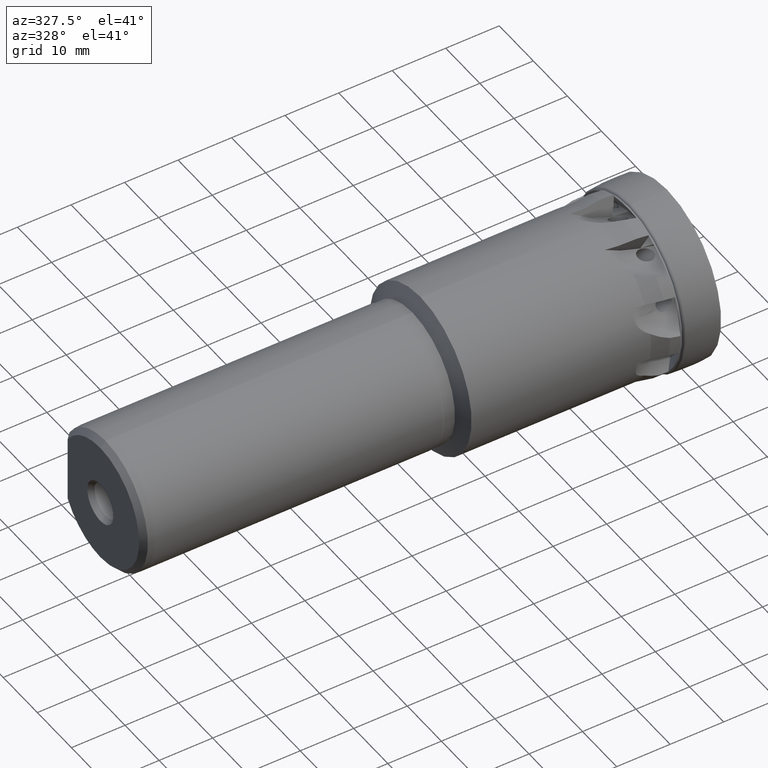
[diagram: clean part render]
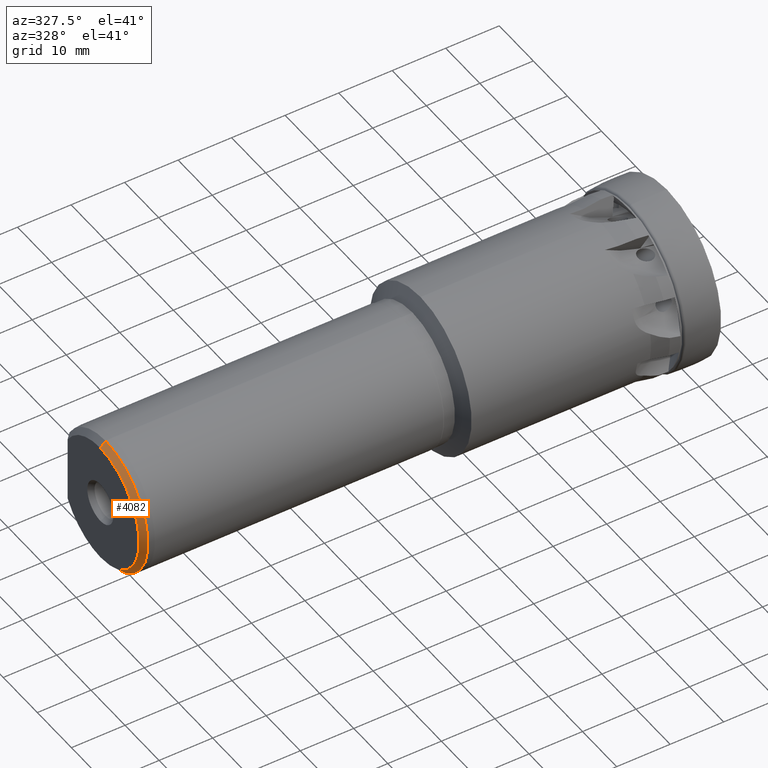
[diagram: same view with one face highlighted and labeled with its STEP entity id]
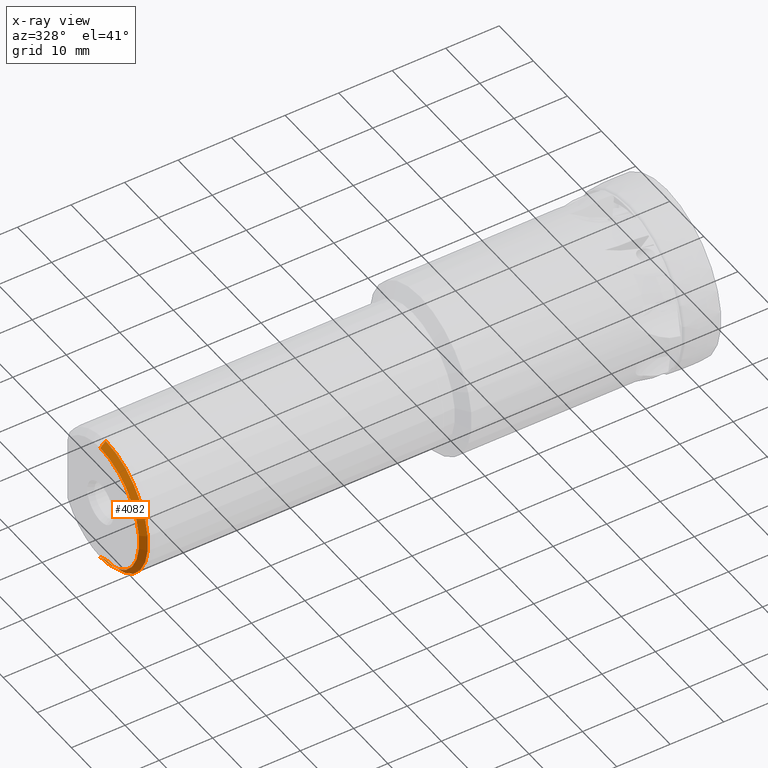
[diagram: x-ray of the same camera — body ghosted, the highlighted face saturated]
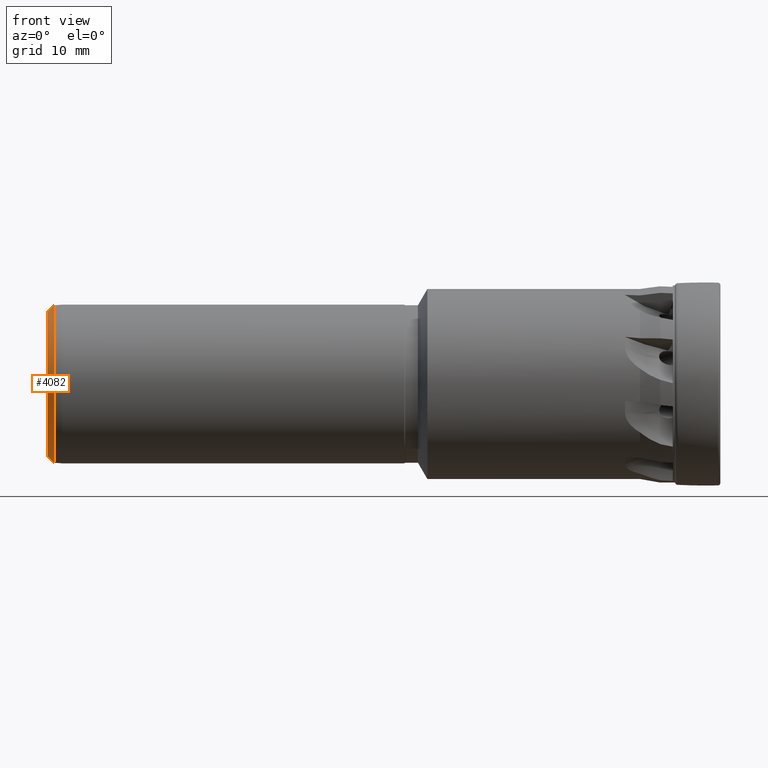
[diagram: same view with one face highlighted and labeled with its STEP entity id]
A machine part, auxiliary view. The second image highlights one B-rep face of the part: STEP entity #4082.
The next image is the same camera in x-ray: the body ghosted, the highlighted face saturated — about 0% of this face is hidden behind the body in this view.
A second angle (front view) of the same face is appended — the face is thin or edge-on in the first view.
In plain terms, the highlighted conical surface has half-angle 45 deg.
Its self-contained STEP definition (entity closure, byte-faithful):
#597 = VERTEX_POINT ( 'NONE', #2269 ) ;
#621 = VERTEX_POINT ( 'NONE', #2281 ) ;
#804 = LINE ( 'NONE', #818, #1286 ) ;
#818 = CARTESIAN_POINT ( 'NONE',  ( -104.5000000000000000, 1.518562030942716400E-015, 12.39999999999998800 ) ) ;
#819 = DIRECTION ( 'NONE',  ( 0.7071067811865482400, 8.659560562354925500E-017, 0.7071067811865469100 ) ) ;
#902 = LINE ( 'NONE', #910, #1356 ) ;
#910 = CARTESIAN_POINT ( 'NONE',  ( -104.5000000000000000, 0.0000000000000000000, -12.39999999999998800 ) ) ;
#912 = DIRECTION ( 'NONE',  ( 0.7071067811865482400, 0.0000000000000000000, -0.7071067811865469100 ) ) ;
#916 = CARTESIAN_POINT ( 'NONE',  ( -104.5000000000000000, 0.0000000000000000000, 0.0000000000000000000 ) ) ;
#917 = DIRECTION ( 'NONE',  ( 1.000000000000000000, -0.0000000000000000000, -0.0000000000000000000 ) ) ;
#918 = DIRECTION ( 'NONE',  ( 0.0000000000000000000, 0.0000000000000000000, -1.000000000000000000 ) ) ;
#1286 = VECTOR ( 'NONE', #819, 1000.000000000000000 ) ;
#1356 = VECTOR ( 'NONE', #912, 1000.000000000000000 ) ;
#1378 = CIRCLE ( 'NONE', #1400, 12.39999999999998800 ) ;
#1400 = AXIS2_PLACEMENT_3D ( 'NONE', #916, #917, #918 ) ;
#2269 = CARTESIAN_POINT ( 'NONE',  ( -104.5000000000000000, 1.518562030942716400E-015, 12.39999999999998800 ) ) ;
#2281 = CARTESIAN_POINT ( 'NONE',  ( -105.5000000000000000, 1.457329690985348800E-015, 11.39999999999998800 ) ) ;
#2379 = CARTESIAN_POINT ( 'NONE',  ( -104.5000000000000000, 0.0000000000000000000, -12.39999999999998800 ) ) ;
#2409 = CARTESIAN_POINT ( 'NONE',  ( -105.5000000000000000, 0.0000000000000000000, -11.39999999999998800 ) ) ;
#2511 = VERTEX_POINT ( 'NONE', #2379 ) ;
#2541 = VERTEX_POINT ( 'NONE', #2409 ) ;
#2583 = EDGE_LOOP ( 'NONE', ( #7573, #7530, #7588, #7547 ) ) ;
#3123 = CARTESIAN_POINT ( 'NONE',  ( -105.5000000000000000, 0.0000000000000000000, 0.0000000000000000000 ) ) ;
#3124 = DIRECTION ( 'NONE',  ( 1.000000000000000000, -0.0000000000000000000, -0.0000000000000000000 ) ) ;
#3125 = DIRECTION ( 'NONE',  ( 0.0000000000000000000, 0.0000000000000000000, -1.000000000000000000 ) ) ;
#3818 = EDGE_CURVE ( 'NONE', #621, #597, #804, .T. ) ;
#3844 = EDGE_CURVE ( 'NONE', #2541, #2511, #902, .T. ) ;
#3846 = EDGE_CURVE ( 'NONE', #597, #2511, #1378, .T. ) ;
#4082 = ADVANCED_FACE ( 'NONE', ( #5770 ), #6375, .T. ) ;
#4275 = EDGE_CURVE ( 'NONE', #621, #2541, #6543, .T. ) ;
#5767 = DIRECTION ( 'NONE',  ( 0.0000000000000000000, 0.0000000000000000000, -1.000000000000000000 ) ) ;
#5769 = CARTESIAN_POINT ( 'NONE',  ( -104.5000000000000000, 0.0000000000000000000, 0.0000000000000000000 ) ) ;
#5770 = FACE_OUTER_BOUND ( 'NONE', #2583, .T. ) ;
#5771 = DIRECTION ( 'NONE',  ( 1.000000000000000000, -0.0000000000000000000, -0.0000000000000000000 ) ) ;
#6375 = CONICAL_SURFACE ( 'NONE', #6376, 12.39999999999998800, 0.7853981633974473900 ) ;
#6376 = AXIS2_PLACEMENT_3D ( 'NONE', #5769, #5771, #5767 ) ;
#6543 = CIRCLE ( 'NONE', #6546, 11.39999999999998800 ) ;
#6546 = AXIS2_PLACEMENT_3D ( 'NONE', #3123, #3124, #3125 ) ;
#7530 = ORIENTED_EDGE ( 'NONE', *, *, #4275, .T. ) ;
#7547 = ORIENTED_EDGE ( 'NONE', *, *, #3846, .F. ) ;
#7573 = ORIENTED_EDGE ( 'NONE', *, *, #3818, .F. ) ;
#7588 = ORIENTED_EDGE ( 'NONE', *, *, #3844, .T. ) ;